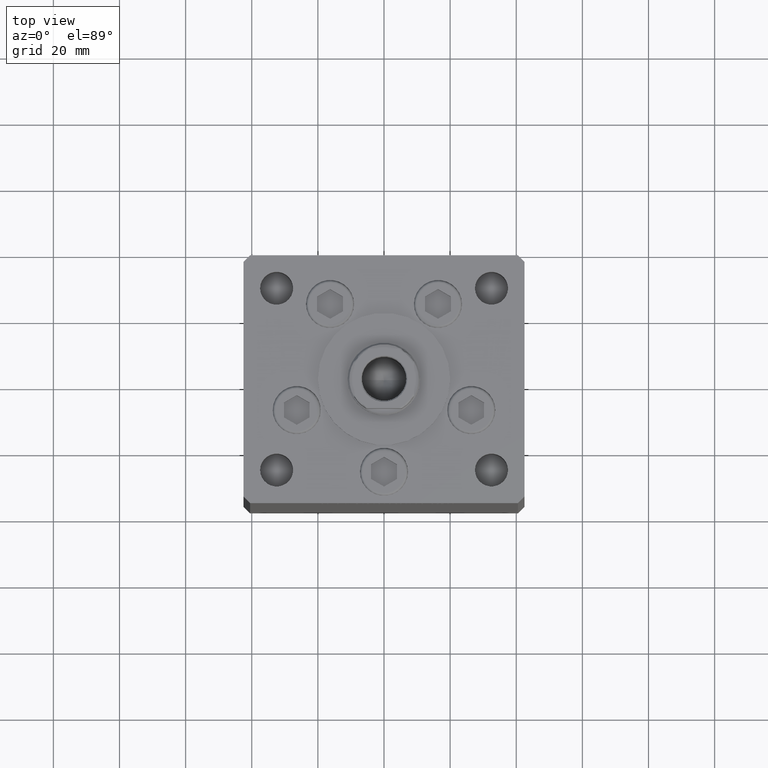
[diagram: clean part render]
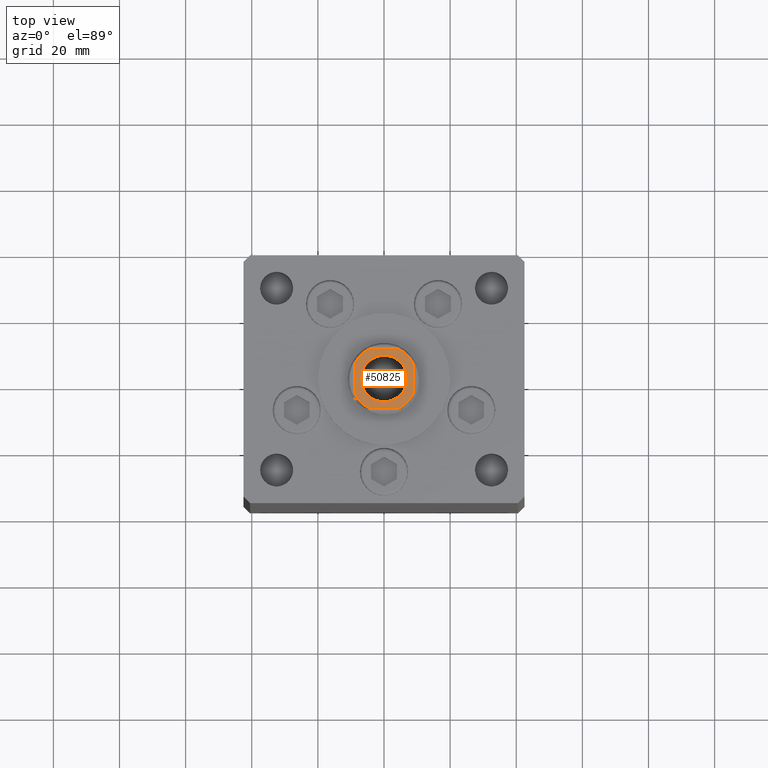
[diagram: same view with one face highlighted and labeled with its STEP entity id]
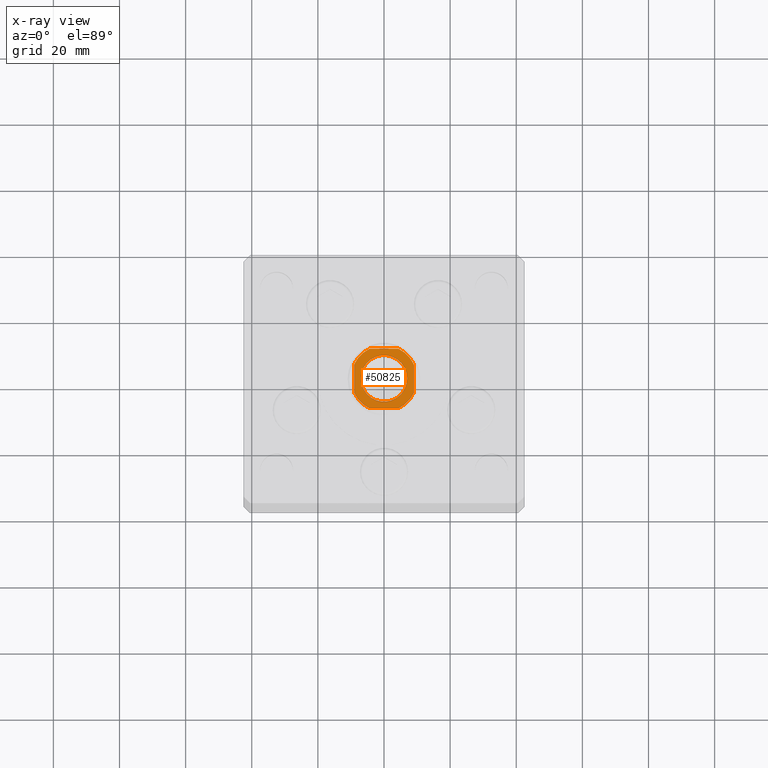
[diagram: x-ray of the same camera — body ghosted, the highlighted face saturated]
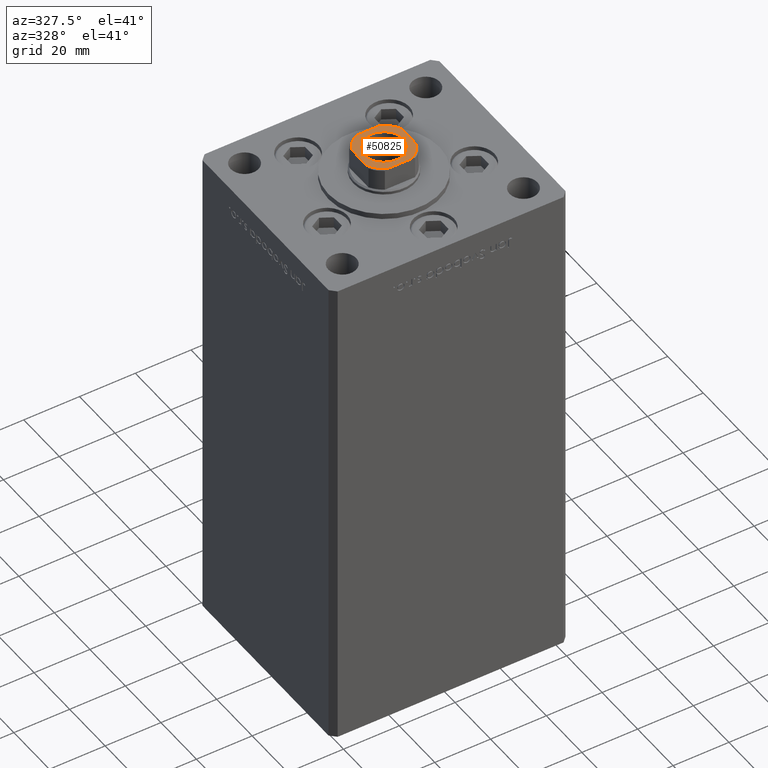
[diagram: same view with one face highlighted and labeled with its STEP entity id]
A machine part, top view. The second image highlights one B-rep face of the part: STEP entity #50825.
The next image is the same camera in x-ray: the body ghosted, the highlighted face saturated — about 0% of this face is hidden behind the body in this view.
A second angle (auxiliary view) of the same face is appended — the face is thin or edge-on in the first view.
In plain terms, the highlighted planar face has unit normal (0, 0, 1).
Its self-contained STEP definition (entity closure, byte-faithful):
#852 = FACE_OUTER_BOUND ( 'NONE', #8331, .T. ) ;
#1352 = CARTESIAN_POINT ( 'NONE',  ( 0.000000000000000000, 0.000000000000000000, 155.7500000000000000 ) ) ;
#1980 = VECTOR ( 'NONE', #26754, 1000.000000000000000 ) ;
#2668 = CARTESIAN_POINT ( 'NONE',  ( -8.999999999999998224, -9.000000000000001776, 155.7500000000000000 ) ) ;
#3724 = EDGE_CURVE ( 'NONE', #28526, #45437, #31813, .T. ) ;
#5226 = CARTESIAN_POINT ( 'NONE',  ( -9.000000000000000000, 4.358898943540674864, 155.7500000000000000 ) ) ;
#6112 = ORIENTED_EDGE ( 'NONE', *, *, #24384, .T. ) ;
#6932 = CARTESIAN_POINT ( 'NONE',  ( 9.000000000000001776, -4.358898943540675752, 155.7500000000000000 ) ) ;
#7343 = CARTESIAN_POINT ( 'NONE',  ( 0.000000000000000000, 0.000000000000000000, 155.7500000000000000 ) ) ;
#7482 = CARTESIAN_POINT ( 'NONE',  ( -9.000000000000000000, 8.999999999999998224, 155.7500000000000000 ) ) ;
#8331 = EDGE_LOOP ( 'NONE', ( #30762, #51547, #32855, #19224, #11038, #31933, #6112, #20761 ) ) ;
#8502 = DIRECTION ( 'NONE',  ( -0.000000000000000000, 0.000000000000000000, 1.000000000000000000 ) ) ;
#8709 = DIRECTION ( 'NONE',  ( -0.000000000000000000, 0.000000000000000000, 1.000000000000000000 ) ) ;
#8881 = CARTESIAN_POINT ( 'NONE',  ( 4.358898943540671311, -9.000000000000001776, 155.7500000000000000 ) ) ;
#9016 = CARTESIAN_POINT ( 'NONE',  ( 0.000000000000000000, 0.000000000000000000, 155.7500000000000000 ) ) ;
#9042 = CARTESIAN_POINT ( 'NONE',  ( 0.000000000000000000, 0.000000000000000000, 155.7500000000000000 ) ) ;
#10386 = AXIS2_PLACEMENT_3D ( 'NONE', #44664, #8502, #28822 ) ;
#11038 = ORIENTED_EDGE ( 'NONE', *, *, #35596, .T. ) ;
#11092 = CIRCLE ( 'NONE', #43949, 10.00000000000000000 ) ;
#11338 = LINE ( 'NONE', #20021, #48476 ) ;
#11425 = VERTEX_POINT ( 'NONE', #52070 ) ;
#11626 = VERTEX_POINT ( 'NONE', #6932 ) ;
#11740 = DIRECTION ( 'NONE',  ( 9.637352644315595243E-17, -1.000000000000000000, 0.000000000000000000 ) ) ;
#12257 = DIRECTION ( 'NONE',  ( -0.000000000000000000, 0.000000000000000000, 1.000000000000000000 ) ) ;
#13141 = VERTEX_POINT ( 'NONE', #42978 ) ;
#13301 = CIRCLE ( 'NONE', #46980, 10.00000000000000000 ) ;
#13574 = EDGE_CURVE ( 'NONE', #13141, #46156, #41295, .T. ) ;
#16068 = CIRCLE ( 'NONE', #45563, 10.00000000000000000 ) ;
#16977 = VECTOR ( 'NONE', #11740, 1000.000000000000000 ) ;
#18716 = EDGE_CURVE ( 'NONE', #45437, #13141, #11092, .T. ) ;
#19224 = ORIENTED_EDGE ( 'NONE', *, *, #48070, .T. ) ;
#19343 = LINE ( 'NONE', #7482, #1980 ) ;
#20021 = CARTESIAN_POINT ( 'NONE',  ( 9.000000000000000000, 8.999999999999998224, 155.7500000000000000 ) ) ;
#20761 = ORIENTED_EDGE ( 'NONE', *, *, #42196, .T. ) ;
#21172 = PLANE ( 'NONE',  #44928 ) ;
#21437 = DIRECTION ( 'NONE',  ( -0.000000000000000000, 0.000000000000000000, 1.000000000000000000 ) ) ;
#22284 = AXIS2_PLACEMENT_3D ( 'NONE', #9016, #41217, #33295 ) ;
#23185 = DIRECTION ( 'NONE',  ( 0.000000000000000000, -0.000000000000000000, -1.000000000000000000 ) ) ;
#23731 = EDGE_CURVE ( 'NONE', #37480, #35843, #34836, .T. ) ;
#24384 = EDGE_CURVE ( 'NONE', #35843, #11425, #19343, .T. ) ;
#25960 = DIRECTION ( 'NONE',  ( 1.000000000000000000, 0.000000000000000000, 0.000000000000000000 ) ) ;
#26754 = DIRECTION ( 'NONE',  ( -1.000000000000000000, -0.000000000000000000, -0.000000000000000000 ) ) ;
#26767 = EDGE_CURVE ( 'NONE', #46666, #41059, #50064, .T. ) ;
#28526 = VERTEX_POINT ( 'NONE', #5226 ) ;
#28822 = DIRECTION ( 'NONE',  ( 1.000000000000000000, 0.000000000000000000, 0.000000000000000000 ) ) ;
#28831 = DIRECTION ( 'NONE',  ( 1.000000000000000000, 0.000000000000000000, 0.000000000000000000 ) ) ;
#29244 = CARTESIAN_POINT ( 'NONE',  ( 0.000000000000000000, 0.000000000000000000, 155.7500000000000000 ) ) ;
#30309 = VECTOR ( 'NONE', #25960, 1000.000000000000000 ) ;
#30762 = ORIENTED_EDGE ( 'NONE', *, *, #3724, .T. ) ;
#31371 = ORIENTED_EDGE ( 'NONE', *, *, #26767, .T. ) ;
#31635 = CARTESIAN_POINT ( 'NONE',  ( 9.000000000000000000, 4.358898943540675752, 155.7500000000000000 ) ) ;
#31813 = LINE ( 'NONE', #47893, #16977 ) ;
#31916 = DIRECTION ( 'NONE',  ( -9.637352644315595243E-17, 1.000000000000000000, -0.000000000000000000 ) ) ;
#31933 = ORIENTED_EDGE ( 'NONE', *, *, #23731, .T. ) ;
#32726 = CARTESIAN_POINT ( 'NONE',  ( 0.000000000000000000, 0.000000000000000000, 155.7500000000000000 ) ) ;
#32855 = ORIENTED_EDGE ( 'NONE', *, *, #13574, .T. ) ;
#33197 = ORIENTED_EDGE ( 'NONE', *, *, #36537, .T. ) ;
#33295 = DIRECTION ( 'NONE',  ( 1.000000000000000000, 0.000000000000000000, 0.000000000000000000 ) ) ;
#33578 = FACE_BOUND ( 'NONE', #33804, .T. ) ;
#33804 = EDGE_LOOP ( 'NONE', ( #31371, #33197 ) ) ;
#34836 = CIRCLE ( 'NONE', #10386, 10.00000000000000000 ) ;
#35057 = DIRECTION ( 'NONE',  ( 1.000000000000000000, 0.000000000000000000, 0.000000000000000000 ) ) ;
#35596 = EDGE_CURVE ( 'NONE', #11626, #37480, #11338, .T. ) ;
#35843 = VERTEX_POINT ( 'NONE', #50215 ) ;
#36537 = EDGE_CURVE ( 'NONE', #41059, #46666, #38443, .T. ) ;
#37480 = VERTEX_POINT ( 'NONE', #31635 ) ;
#38443 = CIRCLE ( 'NONE', #46842, 7.050000000000000711 ) ;
#40188 = CARTESIAN_POINT ( 'NONE',  ( -7.050000000000000711, 8.633759933988840961E-16, 155.7500000000000000 ) ) ;
#40606 = DIRECTION ( 'NONE',  ( -0.000000000000000000, 0.000000000000000000, 1.000000000000000000 ) ) ;
#41059 = VERTEX_POINT ( 'NONE', #40188 ) ;
#41146 = CARTESIAN_POINT ( 'NONE',  ( 7.050000000000000711, 0.000000000000000000, 155.7500000000000000 ) ) ;
#41217 = DIRECTION ( 'NONE',  ( 0.000000000000000000, -0.000000000000000000, -1.000000000000000000 ) ) ;
#41295 = LINE ( 'NONE', #2668, #30309 ) ;
#42136 = CARTESIAN_POINT ( 'NONE',  ( -9.000000000000000000, -4.358898943540675752, 155.7500000000000000 ) ) ;
#42196 = EDGE_CURVE ( 'NONE', #11425, #28526, #13301, .T. ) ;
#42207 = DIRECTION ( 'NONE',  ( 1.000000000000000000, 0.000000000000000000, 0.000000000000000000 ) ) ;
#42978 = CARTESIAN_POINT ( 'NONE',  ( -4.358898943540671311, -9.000000000000001776, 155.7500000000000000 ) ) ;
#43949 = AXIS2_PLACEMENT_3D ( 'NONE', #29244, #40606, #48502 ) ;
#44664 = CARTESIAN_POINT ( 'NONE',  ( 0.000000000000000000, 0.000000000000000000, 155.7500000000000000 ) ) ;
#44928 = AXIS2_PLACEMENT_3D ( 'NONE', #9042, #21437, #28831 ) ;
#45437 = VERTEX_POINT ( 'NONE', #42136 ) ;
#45563 = AXIS2_PLACEMENT_3D ( 'NONE', #1352, #12257, #47889 ) ;
#46156 = VERTEX_POINT ( 'NONE', #8881 ) ;
#46666 = VERTEX_POINT ( 'NONE', #41146 ) ;
#46842 = AXIS2_PLACEMENT_3D ( 'NONE', #7343, #23185, #35057 ) ;
#46980 = AXIS2_PLACEMENT_3D ( 'NONE', #32726, #8709, #42207 ) ;
#47889 = DIRECTION ( 'NONE',  ( 1.000000000000000000, 0.000000000000000000, 0.000000000000000000 ) ) ;
#47893 = CARTESIAN_POINT ( 'NONE',  ( -9.000000000000000000, 8.999999999999998224, 155.7500000000000000 ) ) ;
#48070 = EDGE_CURVE ( 'NONE', #46156, #11626, #16068, .T. ) ;
#48476 = VECTOR ( 'NONE', #31916, 1000.000000000000000 ) ;
#48502 = DIRECTION ( 'NONE',  ( 1.000000000000000000, 0.000000000000000000, 0.000000000000000000 ) ) ;
#50064 = CIRCLE ( 'NONE', #22284, 7.050000000000000711 ) ;
#50215 = CARTESIAN_POINT ( 'NONE',  ( 4.358898943540677529, 8.999999999999998224, 155.7500000000000000 ) ) ;
#50825 = ADVANCED_FACE ( 'NONE', ( #33578, #852 ), #21172, .T. ) ;
#51547 = ORIENTED_EDGE ( 'NONE', *, *, #18716, .T. ) ;
#52070 = CARTESIAN_POINT ( 'NONE',  ( -4.358898943540678417, 8.999999999999998224, 155.7500000000000000 ) ) ;